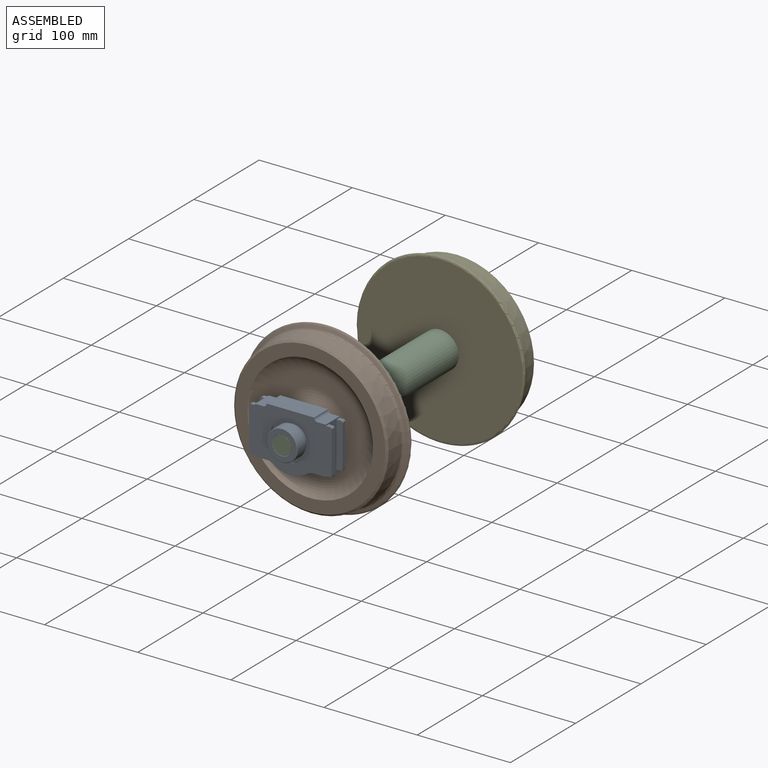
[diagram: assembled view]
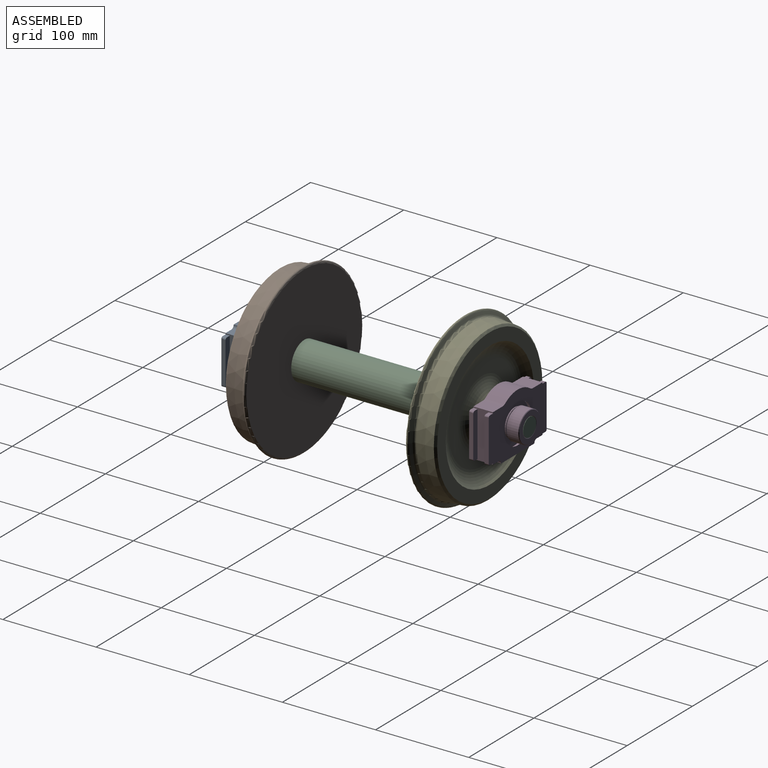
[diagram: assembled view, second angle]
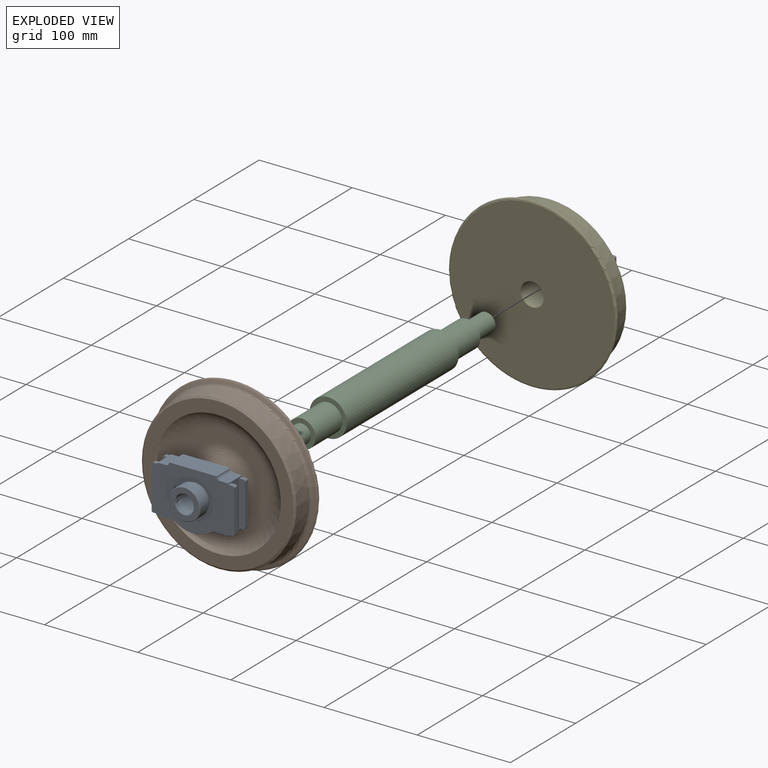
[diagram: exploded view]
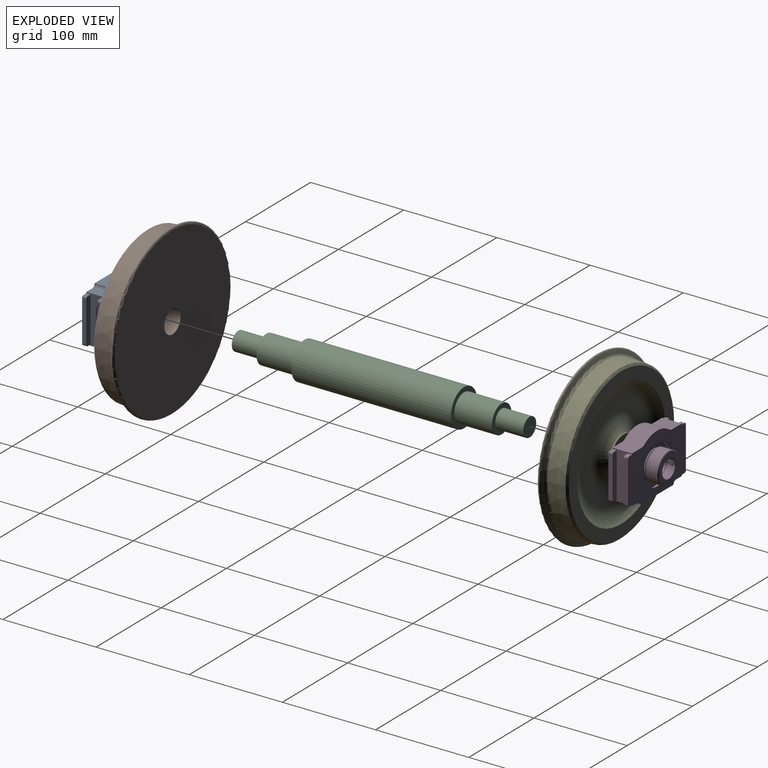
[diagram: exploded view, second angle]
ASSEMBLY  parts=5 mates=4
PART A: 92 faces, bbox 33.9x62.1x89 mm
  f0: plane 88.75x62.05mm, normal (1,0,0), area 3504.6mm2, adj f2,f3,f8,f10,f37,f38,f39,f43
  f1: plane 88.75x62.05mm, normal (-1,0,0), area 3504.6mm2, adj f2,f3,f8,f9,f40,f41,f42,f46
  f2: plane 21x14.65mm, normal (0,-1,0), area 307.6mm2, adj f0,f1,f59,f74
  f3: plane 21x14.65mm, normal (0,-1,0), area 307.6mm2, adj f0,f1,f54,f73
  f4: plane 48.45x6.5mm, normal (-1,0,0), area 313.1mm2, adj f43,f44,f45,f52,f53,f54
  f5: plane 48.45x6.5mm, normal (1,0,0), area 313.1mm2, adj f46,f47,f48,f50,f51,f54
  f6: plane 48.45x6.5mm, normal (-1,0,0), area 313.1mm2, adj f37,f38,f39,f55,f56,f59
  f7: plane 48.45x6.5mm, normal (1,0,0), area 313.1mm2, adj f40,f41,f42,f57,f58,f59
  f8: cylinder r=33mm len=38.43mm, axis (-1,0,0), area 834.4mm2, adj f0,f1,f49,f73,f74
  f9: sphere r=23.5mm, area 565mm2, adj f1,f32
  f10: sphere r=23.5mm, area 565mm2, adj f0,f31
  f11: plane 4.92x4.92mm, normal (0,0,-1), area 19mm2, adj f12
  f12: cone r=2.46mm half-angle=45deg, axis (0,0,1), area 13.1mm2, adj f11,f16
  f13: plane 4.92x4.92mm, normal (0,0,1), area 11.2mm2, adj f14,f62,f63,f64,f65,f66,f67
  f14: cone r=3mm half-angle=45deg, axis (0,0,-1), area 13.1mm2, adj f13,f15
  f15: cone r=3mm half-angle=45deg, axis (0,0,1), area 10.7mm2, adj f14,f23
  f16: cylinder r=3mm len=6mm, axis (0,0,1), area 14.5mm2, adj f12,f24
  f17: torus R=10.6mm, axis (-1,0,0), area 60.5mm2, adj f24,f28
  f18: plane 32.1x32.1mm, normal (-1,0,0), area 170.2mm2, adj f19,f27
  f19: cone r=16.05mm half-angle=45deg, axis (1,0,0), area 87.2mm2, adj f18,f23
  f20: cone r=16.65mm half-angle=45deg, axis (-1,0,0), area 87.2mm2, adj f21,f23
  f21: plane 32.1x32.1mm, normal (1,0,0), area 456.3mm2, adj f20,f22
  f22: torus R=10.6mm, axis (-1,0,0), area 60.5mm2, adj f21,f24
  f23: cylinder r=16.65mm len=33.3mm, axis (-1,0,0), area 1250.7mm2, adj f15,f19,f20
  f24: cylinder r=10mm len=20mm, axis (-1,0,0), area 492.9mm2, adj f16,f17,f22
  f25: plane 29.97x29.97mm, normal (-1,0,0), area 352.5mm2, adj f30,f36
  f26: plane 29.97x29.97mm, normal (1,0,0), area 76.2mm2, adj f27,f35
  f27: cone r=14.15mm half-angle=4.4deg, axis (1,0,0), area 129.8mm2, adj f18,f26
  f28: torus R=10.6mm, axis (-1,0,0), area 60.5mm2, adj f17,f29
  f29: cylinder r=10mm len=20.2mm, axis (-1,0,0), area 1269.2mm2, adj f28,f30
  f30: torus R=10.6mm, axis (-1,0,0), area 60.5mm2, adj f25,f29
  f31: torus R=21.51mm, axis (-1,0,0), area 150.5mm2, adj f10,f34
  f32: torus R=21.51mm, axis (1,0,0), area 150.5mm2, adj f9,f33
  f33: plane 43.03x43.03mm, normal (-1,0,0), area 748.7mm2, adj f32,f36
  f34: plane 43.03x43.03mm, normal (1,0,0), area 748.7mm2, adj f31,f35
  f35: cylinder r=14.98mm len=29.97mm, axis (-1,0,0), area 136.5mm2, adj f26,f34
  f36: cylinder r=14.98mm len=29.97mm, axis (-1,0,0), area 47.1mm2, adj f25,f33
  f37: plane 45.78x4.5mm, normal (0.03,0,1), area 204mm2, adj f0,f6,f38,f39
  f38: cylinder r=2.04mm len=4.5mm, axis (-1,0,0), area 12.3mm2, adj f0,f6,f37,f55
  f39: cylinder r=2.04mm len=4.5mm, axis (-1,0,0), area 12.3mm2, adj f0,f6,f37,f56
  f40: plane 45.78x4.5mm, normal (-0.03,0,1), area 204mm2, adj f1,f7,f41,f42
  f41: cylinder r=2.04mm len=4.5mm, axis (-1,0,0), area 12.3mm2, adj f1,f7,f40,f58
  f42: cylinder r=2.04mm len=4.5mm, axis (-1,0,0), area 12.3mm2, adj f1,f7,f40,f57
  f43: cylinder r=2.04mm len=4.5mm, axis (-1,0,0), area 12.3mm2, adj f0,f4,f45,f52
  f44: cylinder r=2.04mm len=4.5mm, axis (-1,0,0), area 12.3mm2, adj f0,f4,f45,f53
  f45: plane 45.78x4.5mm, normal (0.03,0,-1), area 204mm2, adj f0,f4,f43,f44
  f46: cylinder r=2.04mm len=4.5mm, axis (-1,0,0), area 12.3mm2, adj f1,f5,f48,f51
  f47: cylinder r=2.04mm len=4.5mm, axis (-1,0,0), area 12.3mm2, adj f1,f5,f48,f50
  f48: plane 45.78x4.5mm, normal (-0.03,0,-1), area 204mm2, adj f1,f5,f46,f47
  f49: cone r=2.46mm half-angle=45deg, axis (0,-0.87,0.5), area 11.4mm2, adj f8,f69
  f50: plane 4.5x4.46mm, normal (0,1,0), area 20.1mm2, adj f1,f5,f47,f54
  f51: plane 4.5x4.46mm, normal (0,-1,0), area 20.1mm2, adj f1,f5,f46,f54
  f52: plane 4.5x4.46mm, normal (0,-1,0), area 20.1mm2, adj f0,f4,f43,f54
  f53: plane 4.5x4.46mm, normal (0,1,0), area 20.1mm2, adj f0,f4,f44,f54
  f54: plane 51x21mm, normal (0,0,-1), area 634.9mm2, adj f0,f1,f3,f4,f5,f50,f51,f52
  f55: plane 4.5x4.46mm, normal (0,1,0), area 20.1mm2, adj f0,f6,f38,f59
  f56: plane 4.5x4.46mm, normal (0,-1,0), area 20.1mm2, adj f0,f6,f39,f59
  f57: plane 4.5x4.46mm, normal (0,-1,0), area 20.1mm2, adj f1,f7,f42,f59
  f58: plane 4.5x4.46mm, normal (0,1,0), area 20.1mm2, adj f1,f7,f41,f59
  f59: plane 51x21mm, normal (0,0,1), area 634.9mm2, adj f0,f1,f2,f6,f7,f55,f56,f57
  f60: plane 21x8.95mm, normal (0,1,0), area 187.9mm2, adj f0,f1,f59,f72
  f61: plane 21x8.95mm, normal (0,1,0), area 187.9mm2, adj f0,f1,f54,f71
  f62: plane 1.66x1.5mm, normal (0.87,0.5,0), area 2.9mm2, adj f13,f63,f67,f68
  f63: plane 1.66x1.5mm, normal (0.87,-0.5,0), area 2.9mm2, adj f13,f62,f64,f68
  f64: plane 1.73x1.66mm, normal (0,-1,0), area 2.9mm2, adj f13,f63,f65,f68
  f65: plane 1.66x1.5mm, normal (-0.87,-0.5,0), area 2.9mm2, adj f13,f64,f66,f68
  f66: plane 1.66x1.5mm, normal (-0.87,0.5,0), area 2.9mm2, adj f13,f65,f67,f68
  f67: plane 1.73x1.66mm, normal (0,1,0), area 2.9mm2, adj f13,f62,f66,f68
  f68: plane 3.46x3mm, normal (0,0,1), area 7.8mm2, adj f62,f63,f64,f65,f66,f67
  f69: cylinder r=2.46mm len=10.33mm, axis (0,-0.87,0.5), area 140.4mm2, adj f49,f70
  f70: sphere r=23.5mm, area 19mm2, adj f69
  f71: cylinder r=3.55mm len=21mm, axis (1,0,0), area 117.1mm2, adj f0,f1,f61,f75
  f72: cylinder r=3.55mm len=21mm, axis (1,0,0), area 117.1mm2, adj f0,f1,f60,f75
  f73: cylinder r=7.1mm len=21mm, axis (-1,0,0), area 92.7mm2, adj f0,f1,f3,f8
  f74: cylinder r=7.1mm len=21mm, axis (-1,0,0), area 92.7mm2, adj f0,f1,f2,f8
  f75: plane 51x21mm, normal (0,1,0), area 1071mm2, adj f0,f1,f71,f72
  f76: cylinder r=14.98mm len=29.97mm, axis (-1,0,0), area 402.5mm2, adj f77,f78
  f77: torus R=17.46mm, axis (1,0,0), area 603.1mm2, adj f76,f79
  f78: plane 39.87x39.87mm, normal (-1,0,0), area 543mm2, adj f76,f79
  f79: cylinder r=19.93mm len=39.87mm, axis (1,0,0), area 534.7mm2, adj f77,f78,f80,f82
  f80: cylinder r=0.35mm len=3.19mm, axis (0,-0.5,-0.87), area 7.1mm2, adj f79,f81
  f81: sphere r=23.5mm, area 0.4mm2, adj f80
  f82: cylinder r=0.35mm len=3.19mm, axis (0,0.87,-0.5), area 7.1mm2, adj f79,f83
  f83: sphere r=23.5mm, area 0.4mm2, adj f82
  f84: cylinder r=14.98mm len=29.97mm, axis (-1,0,0), area 402.5mm2, adj f85,f86
  f85: torus R=17.46mm, axis (1,0,0), area 603.1mm2, adj f84,f87
  f86: plane 39.87x39.87mm, normal (1,0,0), area 543mm2, adj f84,f87
  f87: cylinder r=19.93mm len=39.87mm, axis (1,0,0), area 534.7mm2, adj f85,f86,f88,f90
  f88: cylinder r=0.35mm len=3.35mm, axis (0,0.97,-0.26), area 7.1mm2, adj f87,f89
  f89: sphere r=23.5mm, area 0.4mm2, adj f88
  f90: cylinder r=0.35mm len=3.28mm, axis (0,0,1), area 7.1mm2, adj f87,f91
  f91: sphere r=23.5mm, area 0.4mm2, adj f90
PART B: 14 faces, bbox 195.7x39.8x195.7 mm
  f0: plane 102.8x102.8mm, normal (0,-1,0), area 4138.7mm2, adj f4,f5
  f1: plane 176.58x176.58mm, normal (0,1,0), area 23998.2mm2, adj f9,f13
  f2: cone r=84mm half-angle=3deg, axis (0,1,0), area 9472.8mm2, adj f6,f7
  f3: plane 161.36x161.36mm, normal (0,-1,0), area 6134.3mm2, adj f5,f7
  f4: torus R=36.4mm, axis (0,-1,0), area 3308.1mm2, adj f0,f11
  f5: torus R=51.4mm, axis (0,1,0), area 7032.4mm2, adj f0,f3
  f6: torus R=87.02mm, axis (0,-1,0), area 1836.8mm2, adj f2,f8
  f7: cone r=80.68mm half-angle=48deg, axis (0,1,0), area 1533.9mm2, adj f2,f3
  f8: cone r=85.69mm half-angle=68.7deg, axis (0,1,0), area 2008mm2, adj f6,f10
  f9: torus R=88.29mm, axis (0,-1,0), area 1821.7mm2, adj f1,f10
  f10: torus R=88.35mm, axis (0,1,0), area 1116.4mm2, adj f8,f9
  f11: cylinder r=20mm len=40mm, axis (0,1,0), area 251.3mm2, adj f4,f12
  f12: plane 40x40mm, normal (0,-1,0), area 765.8mm2, adj f11,f13
  f13: cylinder r=12.5mm len=30mm, axis (0,-1,0), area 2356.2mm2, adj f1,f12
PART C: 11 faces, bbox 40x312.8x40 mm
  f0: plane 30x30mm, normal (0,1,0), area 392.7mm2, adj f8,f9
  f1: plane 40x40mm, normal (0,1,0), area 549.8mm2, adj f4,f8
  f2: plane 30x30mm, normal (0,-1,0), area 392.7mm2, adj f5,f6
  f3: plane 40x40mm, normal (0,-1,0), area 549.8mm2, adj f4,f5
  f4: cylinder r=20mm len=171.5mm, axis (0,1,0), area 21551.3mm2, adj f1,f3
  f5: cylinder r=15mm len=40.8mm, axis (0,1,0), area 3845.3mm2, adj f2,f3
  f6: cylinder r=10mm len=30mm, axis (0,1,0), area 1885mm2, adj f2,f7
  f7: plane 20x20mm, normal (0,-1,0), area 314.2mm2, adj f6
  f8: cylinder r=15mm len=40.5mm, axis (0,-1,0), area 3817mm2, adj f0,f1
  f9: cylinder r=10mm len=30mm, axis (0,-1,0), area 1885mm2, adj f0,f10
  f10: plane 20x20mm, normal (0,1,0), area 314.2mm2, adj f9
PART D: same geometry as A
PART E: same geometry as B
PLACE A rot(axis=(0.58,-0.58,-0.58),120deg) t=(-24.18,-220.94,17.88)mm
PLACE B t=(-24.18,-173.54,17.88)mm
PLACE C t=(-24.18,-2.04,17.88)mm fixed
PLACE D rot(axis=(-0.58,-0.58,0.58),120deg) t=(-24.18,45.06,17.88)mm
PLACE E rot(axis=(1,0,0),180deg) t=(-24.18,-2.04,17.88)mm
MATE revolute C.f4 <-> D.f17  axis (0,-1,0) through (-24.18,68.46,17.88)mm
MATE fastened E.f2 <-> C.f4  axis (0,-1,0) through (-24.18,-2.04,17.88)mm
MATE revolute A.f17 <-> C.f4  axis (0,-1,0) through (-24.18,-244.34,17.88)mm
MATE fastened C.f4 <-> B.f2  axis (0,-1,0) through (-24.18,-173.54,17.88)mm
